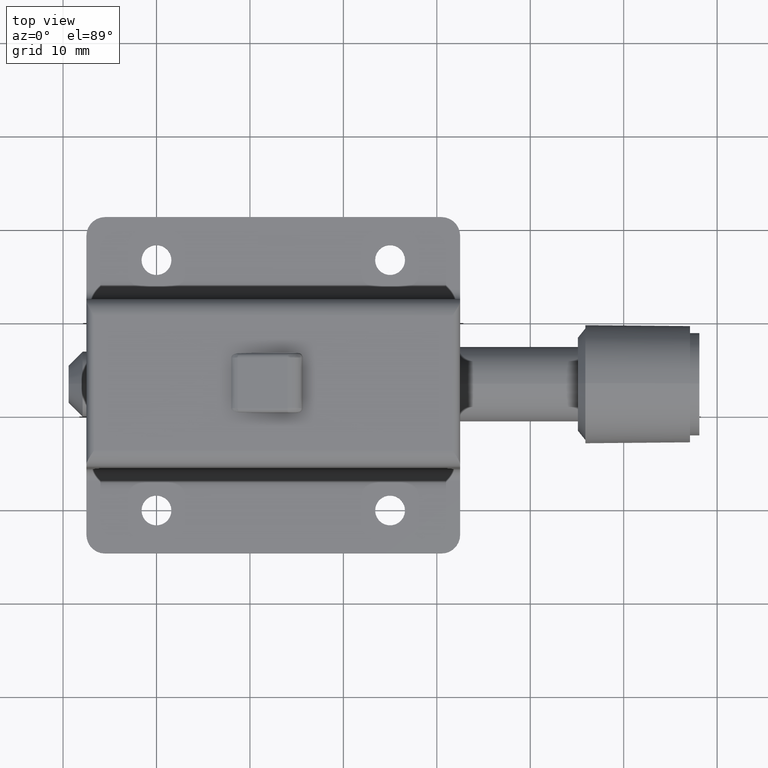
[diagram: clean part render]
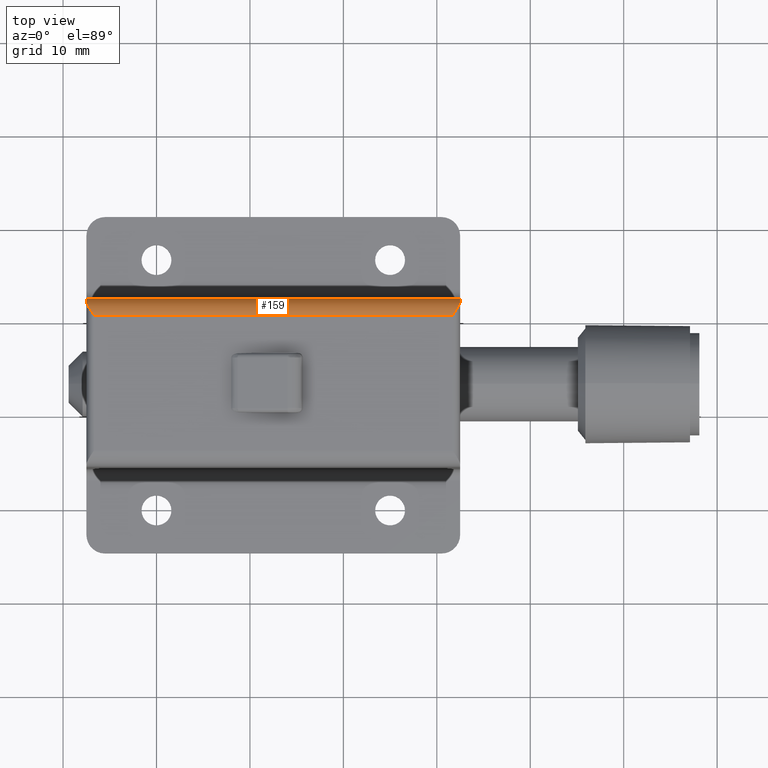
[diagram: same view with one face highlighted and labeled with its STEP entity id]
A machine part, top view. The second image highlights one B-rep face of the part: STEP entity #159.
In plain terms, the highlighted cylindrical surface (edge-blend (fillet) strip) has radius 1.75 mm, axis along (-1, -0, -0).
Its self-contained STEP definition (entity closure, byte-faithful):
#159=ADVANCED_FACE('',(#686),#685,.T.);
#685=CYLINDRICAL_SURFACE('',#1429,1.75000000000E+00);
#686=FACE_OUTER_BOUND('',#1430,.T.);
#1426=CARTESIAN_POINT('',(-9.67500000000E+02,2.06500000000E+01,1.30500000000E+01));
#1427=DIRECTION('',(-1.00000000000E+00,-0.00000000000E+00,-0.00000000000E+00));
#1428=DIRECTION('',(-0.00000000000E+00,-0.00000000000E+00,1.00000000000E+00));
#1429=AXIS2_PLACEMENT_3D('',#1426,#1427,#1428);
#1430=EDGE_LOOP('',(#1948,#1949,#1950,#1951,#1952,#1953));
#1948=ORIENTED_EDGE('',*,*,#2197,.F.);
#1949=ORIENTED_EDGE('',*,*,#2292,.T.);
#1950=ORIENTED_EDGE('',*,*,#2214,.T.);
#1951=ORIENTED_EDGE('',*,*,#2144,.T.);
#1952=ORIENTED_EDGE('',*,*,#2188,.T.);
#1953=ORIENTED_EDGE('',*,*,#2294,.F.);
#2144=EDGE_CURVE('',#2382,#2375,#2383,.T.);
#2188=EDGE_CURVE('',#2375,#2683,#2684,.T.);
#2197=EDGE_CURVE('',#2737,#2744,#2745,.T.);
#2214=EDGE_CURVE('',#2858,#2382,#2859,.T.);
#2292=EDGE_CURVE('',#2737,#2858,#3375,.T.);
#2294=EDGE_CURVE('',#2744,#2683,#3387,.T.);
#2375=VERTEX_POINT('',#3875);
#2382=VERTEX_POINT('',#3879);
#2383=(BOUNDED_CURVE() B_SPLINE_CURVE(3,(#3880,#3881,#3882,#3883,#3884,#3885,#3886,#3887,#3888,#3889),.UNSPECIFIED.,.F.,.F.) B_SPLINE_CURVE_WITH_KNOTS((4,2,2,2,4),(-1.93834991033E-03,-1.45376243275E-03,-9.69174955164E-04,-4.84587477582E-04,-6.25463444139E-18),.UNSPECIFIED.) CURVE() GEOMETRIC_REPRESENTATION_ITEM() RATIONAL_B_SPLINE_CURVE((1.00000000000E+00,1.00000000000E+00,1.00000000000E+00,1.00000000000E+00,1.00000000000E+00,1.00000000000E+00,1.00000000000E+00,1.00000000000E+00,1.00000000000E+00,1.00000000000E+00)) REPRESENTATION_ITEM('') );
#2683=VERTEX_POINT('',#4084);
#2684=CIRCLE('',#4088,1.75000000000E+00);
#2737=VERTEX_POINT('',#4118);
#2744=VERTEX_POINT('',#4122);
#2745=CIRCLE('',#4126,1.75000000000E+00);
#2858=VERTEX_POINT('',#4193);
#2859=LINE('',#4194,#4195);
#3375=(BOUNDED_CURVE() B_SPLINE_CURVE(3,(#4512,#4513,#4514,#4515,#4516,#4517,#4518,#4519,#4520,#4521),.UNSPECIFIED.,.F.,.F.) B_SPLINE_CURVE_WITH_KNOTS((4,2,2,2,4),(6.31448876631E-18,4.84587477582E-04,9.69174955164E-04,1.45376243275E-03,1.93834991033E-03),.UNSPECIFIED.) CURVE() GEOMETRIC_REPRESENTATION_ITEM() RATIONAL_B_SPLINE_CURVE((1.00000000000E+00,1.00000000000E+00,1.00000000000E+00,1.00000000000E+00,1.00000000000E+00,1.00000000000E+00,1.00000000000E+00,1.00000000000E+00,1.00000000000E+00,1.00000000000E+00)) REPRESENTATION_ITEM('') );
#3387=LINE('',#4525,#4526);
#3875=CARTESIAN_POINT('',(3.25000000000E+01,2.21196938457E+01,1.40000000000E+01));
#3879=CARTESIAN_POINT('',(3.17000000000E+01,2.06500000000E+01,1.48000000000E+01));
#3880=CARTESIAN_POINT('',(3.17000000000E+01,2.06500000000E+01,1.48000000000E+01));
#3881=CARTESIAN_POINT('',(3.17904744032E+01,2.07838137581E+01,1.48000000000E+01));
#3882=CARTESIAN_POINT('',(3.18827159471E+01,2.09202191080E+01,1.47843426260E+01));
#3883=CARTESIAN_POINT('',(3.20570950138E+01,2.11846903022E+01,1.47218459832E+01));
#3884=CARTESIAN_POINT('',(3.21405224396E+01,2.13144236780E+01,1.46753220969E+01));
#3885=CARTESIAN_POINT('',(3.22940041654E+01,2.15705482436E+01,1.45452329831E+01));
#3886=CARTESIAN_POINT('',(3.23621808729E+01,2.16935294878E+01,1.44632669076E+01));
#3887=CARTESIAN_POINT('',(3.24655152738E+01,2.19245871212E+01,1.42590098488E+01));
#3888=CARTESIAN_POINT('',(3.25000000000E+01,2.20303522408E+01,1.41382155862E+01));
#3889=CARTESIAN_POINT('',(3.25000000000E+01,2.21196938457E+01,1.40000000000E+01));
#4084=CARTESIAN_POINT('',(3.25000000000E+01,2.24000000000E+01,1.30500000000E+01));
#4085=CARTESIAN_POINT('',(3.25000000000E+01,2.06500000000E+01,1.30500000000E+01));
#4086=DIRECTION('',(-1.00000000000E+00,-0.00000000000E+00,0.00000000000E+00));
#4087=DIRECTION('',(0.00000000000E+00,-0.00000000000E+00,1.00000000000E+00));
#4088=AXIS2_PLACEMENT_3D('',#4085,#4086,#4087);
#4118=CARTESIAN_POINT('',(-7.50000000000E+00,2.21196938457E+01,1.40000000000E+01));
#4122=CARTESIAN_POINT('',(-7.50000000000E+00,2.24000000000E+01,1.30500000000E+01));
#4123=CARTESIAN_POINT('',(-7.50000000000E+00,2.06500000000E+01,1.30500000000E+01));
#4124=DIRECTION('',(-1.00000000000E+00,-0.00000000000E+00,0.00000000000E+00));
#4125=DIRECTION('',(0.00000000000E+00,-0.00000000000E+00,1.00000000000E+00));
#4126=AXIS2_PLACEMENT_3D('',#4123,#4124,#4125);
#4193=CARTESIAN_POINT('',(-6.70000000000E+00,2.06500000000E+01,1.48000000000E+01));
#4194=CARTESIAN_POINT('',(-6.70000000000E+00,2.06500000000E+01,1.48000000000E+01));
#4195=VECTOR('',#4196,3.84000000000E+01);
#4196=DIRECTION('',(1.00000000000E+00,0.00000000000E+00,0.00000000000E+00));
#4512=CARTESIAN_POINT('',(-7.50000000000E+00,2.21196938457E+01,1.40000000000E+01));
#4513=CARTESIAN_POINT('',(-7.50000000000E+00,2.20303522408E+01,1.41382155862E+01));
#4514=CARTESIAN_POINT('',(-7.46551527377E+00,2.19245871212E+01,1.42590098488E+01));
#4515=CARTESIAN_POINT('',(-7.36218087289E+00,2.16935294878E+01,1.44632669076E+01));
#4516=CARTESIAN_POINT('',(-7.29400416540E+00,2.15705482436E+01,1.45452329831E+01));
#4517=CARTESIAN_POINT('',(-7.14052243962E+00,2.13144236780E+01,1.46753220969E+01));
#4518=CARTESIAN_POINT('',(-7.05709501384E+00,2.11846903022E+01,1.47218459832E+01));
#4519=CARTESIAN_POINT('',(-6.88271594715E+00,2.09202191080E+01,1.47843426260E+01));
#4520=CARTESIAN_POINT('',(-6.79047440319E+00,2.07838137581E+01,1.48000000000E+01));
#4521=CARTESIAN_POINT('',(-6.70000000000E+00,2.06500000000E+01,1.48000000000E+01));
#4525=CARTESIAN_POINT('',(-7.50000000000E+00,2.24000000000E+01,1.30500000000E+01));
#4526=VECTOR('',#4527,4.00000000000E+01);
#4527=DIRECTION('',(1.00000000000E+00,0.00000000000E+00,0.00000000000E+00));